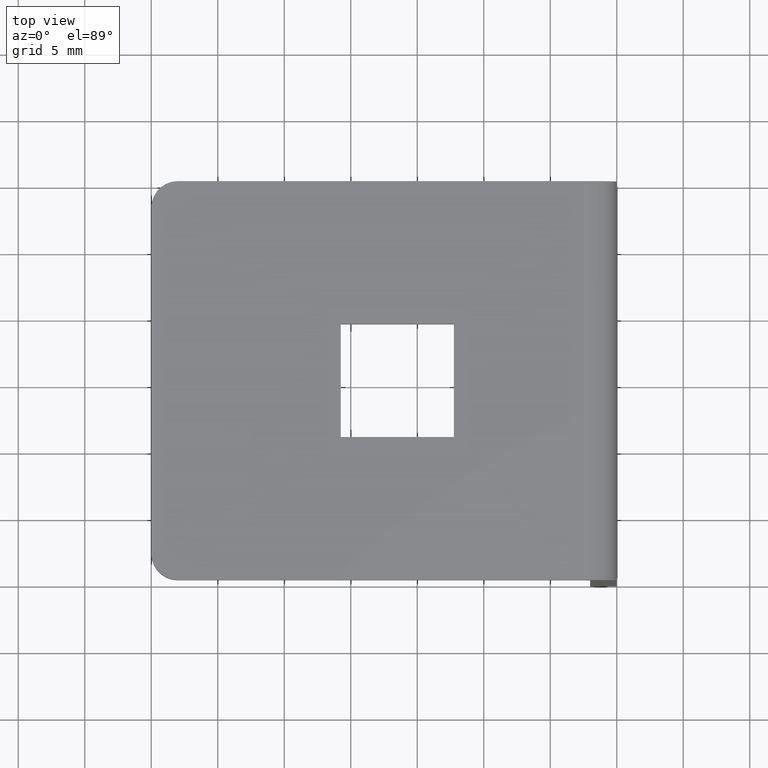
[diagram: clean part render]
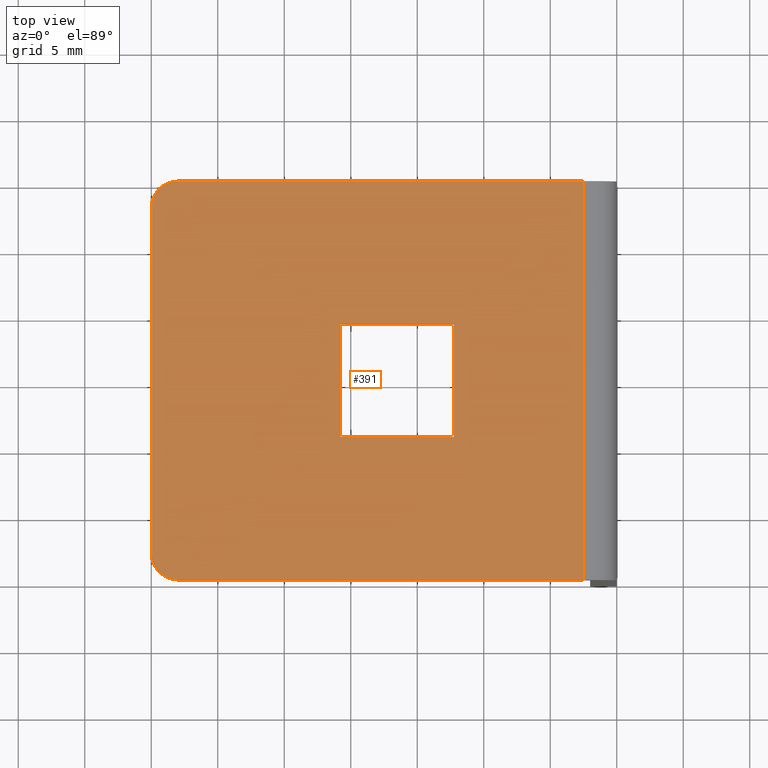
[diagram: same view with one face highlighted and labeled with its STEP entity id]
A machine part, top view. The second image highlights one B-rep face of the part: STEP entity #391.
In plain terms, the highlighted planar face has unit normal (0, 0, 1).
Its self-contained STEP definition (entity closure, byte-faithful):
#16=FACE_BOUND('',#68,.T.);
#24=PLANE('',#423);
#43=FACE_OUTER_BOUND('',#67,.T.);
#67=EDGE_LOOP('',(#300,#301,#302,#303,#304,#305));
#68=EDGE_LOOP('',(#306,#307,#308,#309));
#100=LINE('',#607,#140);
#103=LINE('',#613,#143);
#104=LINE('',#617,#144);
#105=LINE('',#618,#145);
#106=LINE('',#621,#146);
#107=LINE('',#623,#147);
#108=LINE('',#625,#148);
#109=LINE('',#626,#149);
#140=VECTOR('',#489,30.5);
#143=VECTOR('',#494,26.);
#144=VECTOR('',#497,30.5);
#145=VECTOR('',#498,30.);
#146=VECTOR('',#499,8.5);
#147=VECTOR('',#500,8.5);
#148=VECTOR('',#501,8.5);
#149=VECTOR('',#502,8.5);
#172=CIRCLE('',#420,2.);
#174=CIRCLE('',#424,2.);
#193=VERTEX_POINT('',#597);
#194=VERTEX_POINT('',#598);
#197=VERTEX_POINT('',#606);
#199=VERTEX_POINT('',#612);
#200=VERTEX_POINT('',#614);
#201=VERTEX_POINT('',#616);
#202=VERTEX_POINT('',#619);
#203=VERTEX_POINT('',#620);
#204=VERTEX_POINT('',#622);
#205=VERTEX_POINT('',#624);
#231=EDGE_CURVE('',#193,#194,#172,.T.);
#235=EDGE_CURVE('',#194,#197,#100,.T.);
#238=EDGE_CURVE('',#199,#193,#103,.T.);
#239=EDGE_CURVE('',#200,#199,#174,.T.);
#240=EDGE_CURVE('',#201,#200,#104,.T.);
#241=EDGE_CURVE('',#201,#197,#105,.T.);
#242=EDGE_CURVE('',#202,#203,#106,.T.);
#243=EDGE_CURVE('',#203,#204,#107,.T.);
#244=EDGE_CURVE('',#204,#205,#108,.T.);
#245=EDGE_CURVE('',#205,#202,#109,.T.);
#300=ORIENTED_EDGE('',*,*,#231,.F.);
#301=ORIENTED_EDGE('',*,*,#238,.F.);
#302=ORIENTED_EDGE('',*,*,#239,.F.);
#303=ORIENTED_EDGE('',*,*,#240,.F.);
#304=ORIENTED_EDGE('',*,*,#241,.T.);
#305=ORIENTED_EDGE('',*,*,#235,.F.);
#306=ORIENTED_EDGE('',*,*,#242,.T.);
#307=ORIENTED_EDGE('',*,*,#243,.T.);
#308=ORIENTED_EDGE('',*,*,#244,.T.);
#309=ORIENTED_EDGE('',*,*,#245,.T.);
#391=ADVANCED_FACE('',(#43,#16),#24,.T.);
#420=AXIS2_PLACEMENT_3D('',#599,#481,#482);
#423=AXIS2_PLACEMENT_3D('',#611,#492,#493);
#424=AXIS2_PLACEMENT_3D('',#615,#495,#496);
#481=DIRECTION('center_axis',(0.,0.,-1.));
#482=DIRECTION('ref_axis',(-0.707106781186547,0.707106781186548,0.));
#489=DIRECTION('',(1.,0.,0.));
#492=DIRECTION('center_axis',(0.,0.,1.));
#493=DIRECTION('ref_axis',(1.,0.,0.));
#494=DIRECTION('',(0.,1.,0.));
#495=DIRECTION('center_axis',(0.,0.,-1.));
#496=DIRECTION('ref_axis',(-0.707106781186548,-0.707106781186547,0.));
#497=DIRECTION('',(-1.,0.,0.));
#498=DIRECTION('',(0.,1.,0.));
#499=DIRECTION('',(0.,-1.,0.));
#500=DIRECTION('',(-1.,0.,0.));
#501=DIRECTION('',(0.,1.,0.));
#502=DIRECTION('',(1.,0.,0.));
#597=CARTESIAN_POINT('',(0.,28.,2.));
#598=CARTESIAN_POINT('',(2.,30.,2.));
#599=CARTESIAN_POINT('Origin',(2.,28.,2.));
#606=CARTESIAN_POINT('',(32.5,30.,2.));
#607=CARTESIAN_POINT('',(35.,30.,2.));
#611=CARTESIAN_POINT('Origin',(17.5,15.,2.));
#612=CARTESIAN_POINT('',(0.,2.,2.));
#613=CARTESIAN_POINT('',(0.,30.,2.));
#614=CARTESIAN_POINT('',(2.,0.,2.));
#615=CARTESIAN_POINT('Origin',(2.,2.,2.));
#616=CARTESIAN_POINT('',(32.5,0.,2.));
#617=CARTESIAN_POINT('',(0.,0.,2.));
#618=CARTESIAN_POINT('',(32.5,7.5,2.));
#619=CARTESIAN_POINT('',(22.75,19.25,2.));
#620=CARTESIAN_POINT('',(22.75,10.75,2.));
#621=CARTESIAN_POINT('',(22.75,12.875,2.));
#622=CARTESIAN_POINT('',(14.25,10.75,2.));
#623=CARTESIAN_POINT('',(15.875,10.75,2.));
#624=CARTESIAN_POINT('',(14.25,19.25,2.));
#625=CARTESIAN_POINT('',(14.25,17.125,2.));
#626=CARTESIAN_POINT('',(20.125,19.25,2.));